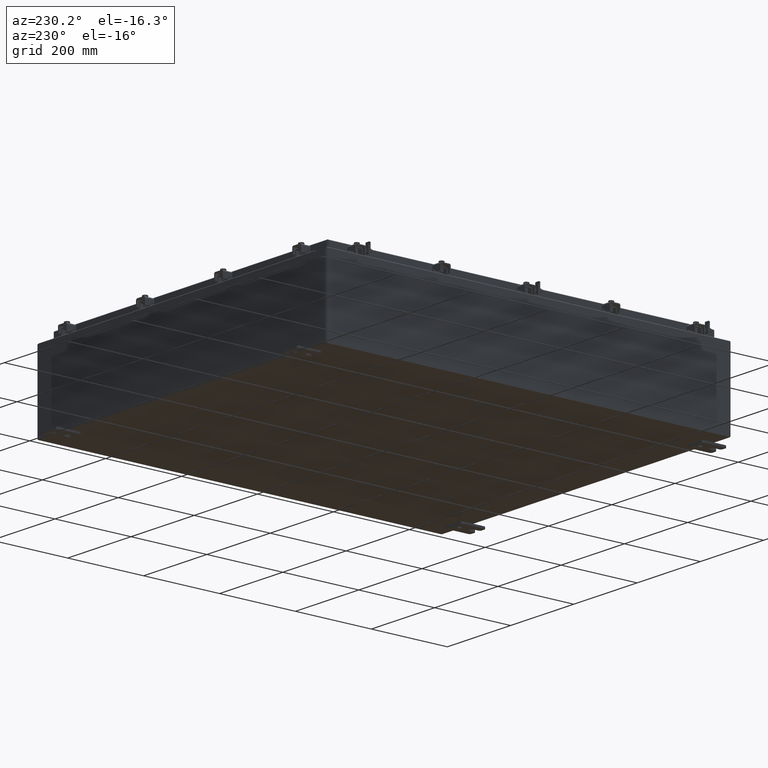
[diagram: clean part render]
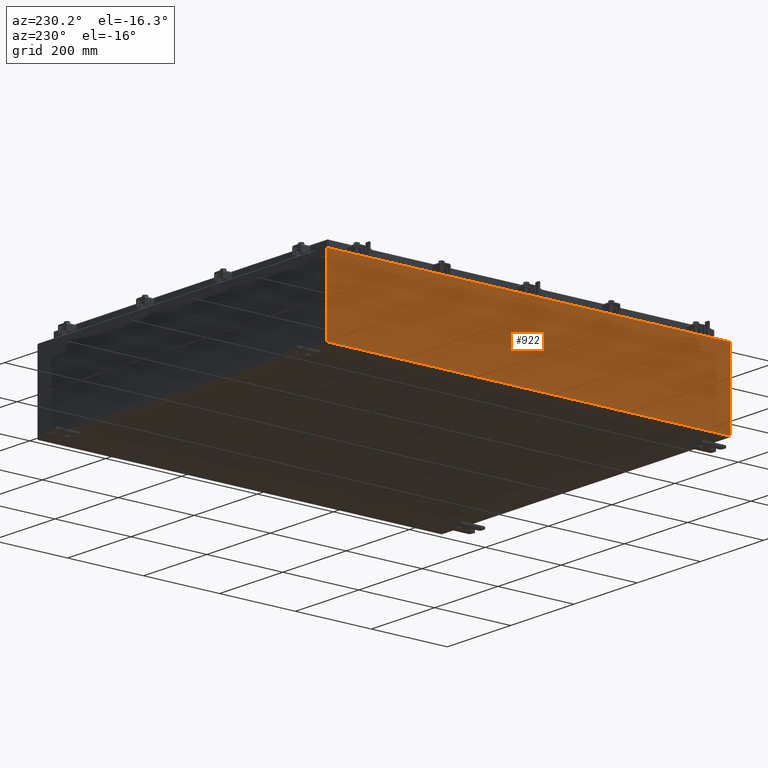
[diagram: same view with one face highlighted and labeled with its STEP entity id]
A machine part, auxiliary view. The second image highlights one B-rep face of the part: STEP entity #922.
In plain terms, the highlighted planar face has unit normal (1, 0, 0).
Its self-contained STEP definition (entity closure, byte-faithful):
#922 = ADVANCED_FACE ( 'NONE', ( #26517 ), #4546, .F. ) ;
#1221 = DIRECTION ( 'NONE',  ( 3.584876173029202900E-015, 0.0000000000000000000, -1.000000000000000000 ) ) ;
#1445 = CARTESIAN_POINT ( 'NONE',  ( -17.99999999999999600, 0.0000000000000000000, -6.478858477053722900E-014 ) ) ;
#2949 = EDGE_CURVE ( 'NONE', #11525, #5482, #25407, .T. ) ;
#3049 = DIRECTION ( 'NONE',  ( 0.0000000000000000000, 1.000000000000000000, 0.0000000000000000000 ) ) ;
#3483 = EDGE_CURVE ( 'NONE', #17664, #21312, #24852, .T. ) ;
#3537 = CARTESIAN_POINT ( 'NONE',  ( -17.99999999999999600, 20.92529999999999600, 0.01299999999999984700 ) ) ;
#4546 = PLANE ( 'NONE',  #9485 ) ;
#4897 = DIRECTION ( 'NONE',  ( 3.584876173029202900E-015, 0.0000000000000000000, -1.000000000000000000 ) ) ;
#5100 = DIRECTION ( 'NONE',  ( 1.000000000000000000, 0.0000000000000000000, 3.584876173029202900E-015 ) ) ;
#5482 = VERTEX_POINT ( 'NONE', #15907 ) ;
#9485 = AXIS2_PLACEMENT_3D ( 'NONE', #1445, #5100, #4897 ) ;
#9956 = VECTOR ( 'NONE', #18248, 39.37007874015748100 ) ;
#11293 = CARTESIAN_POINT ( 'NONE',  ( -18.00000000000002500, 20.92529999999999600, 7.837599999999999200 ) ) ;
#11525 = VERTEX_POINT ( 'NONE', #11716 ) ;
#11716 = CARTESIAN_POINT ( 'NONE',  ( -17.99999999999999600, -20.92529999999999300, 0.01299999999999984700 ) ) ;
#11914 = ORIENTED_EDGE ( 'NONE', *, *, #3483, .T. ) ;
#13506 = ORIENTED_EDGE ( 'NONE', *, *, #15727, .T. ) ;
#13621 = VECTOR ( 'NONE', #3049, 39.37007874015748100 ) ;
#14026 = ORIENTED_EDGE ( 'NONE', *, *, #21446, .T. ) ;
#15727 = EDGE_CURVE ( 'NONE', #11525, #17664, #20310, .T. ) ;
#15834 = EDGE_LOOP ( 'NONE', ( #11914, #14026, #27132, #13506 ) ) ;
#15898 = CARTESIAN_POINT ( 'NONE',  ( -17.99999999999999600, 20.92529999999999600, -6.478858477053722900E-014 ) ) ;
#15907 = CARTESIAN_POINT ( 'NONE',  ( -17.99999999999999600, 20.92529999999999600, 0.01299999999999983600 ) ) ;
#15918 = CARTESIAN_POINT ( 'NONE',  ( -18.00000000000002500, -20.92529999999999300, 7.837599999999999200 ) ) ;
#17664 = VERTEX_POINT ( 'NONE', #15918 ) ;
#18248 = DIRECTION ( 'NONE',  ( -0.0000000000000000000, 1.000000000000000000, -0.0000000000000000000 ) ) ;
#19872 = CARTESIAN_POINT ( 'NONE',  ( -18.00000000000002500, -20.92529999999999600, 7.837599999999999200 ) ) ;
#20310 = LINE ( 'NONE', #27144, #25228 ) ;
#21312 = VERTEX_POINT ( 'NONE', #11293 ) ;
#21446 = EDGE_CURVE ( 'NONE', #21312, #5482, #23761, .T. ) ;
#22339 = VECTOR ( 'NONE', #1221, 39.37007874015748100 ) ;
#22914 = DIRECTION ( 'NONE',  ( -3.584876173029202900E-015, 0.0000000000000000000, 1.000000000000000000 ) ) ;
#23761 = LINE ( 'NONE', #15898, #22339 ) ;
#24852 = LINE ( 'NONE', #19872, #13621 ) ;
#25228 = VECTOR ( 'NONE', #22914, 39.37007874015748100 ) ;
#25407 = LINE ( 'NONE', #3537, #9956 ) ;
#26517 = FACE_OUTER_BOUND ( 'NONE', #15834, .T. ) ;
#27132 = ORIENTED_EDGE ( 'NONE', *, *, #2949, .F. ) ;
#27144 = CARTESIAN_POINT ( 'NONE',  ( -17.99999999999999600, -20.92530000000000400, -6.478858477053722900E-014 ) ) ;